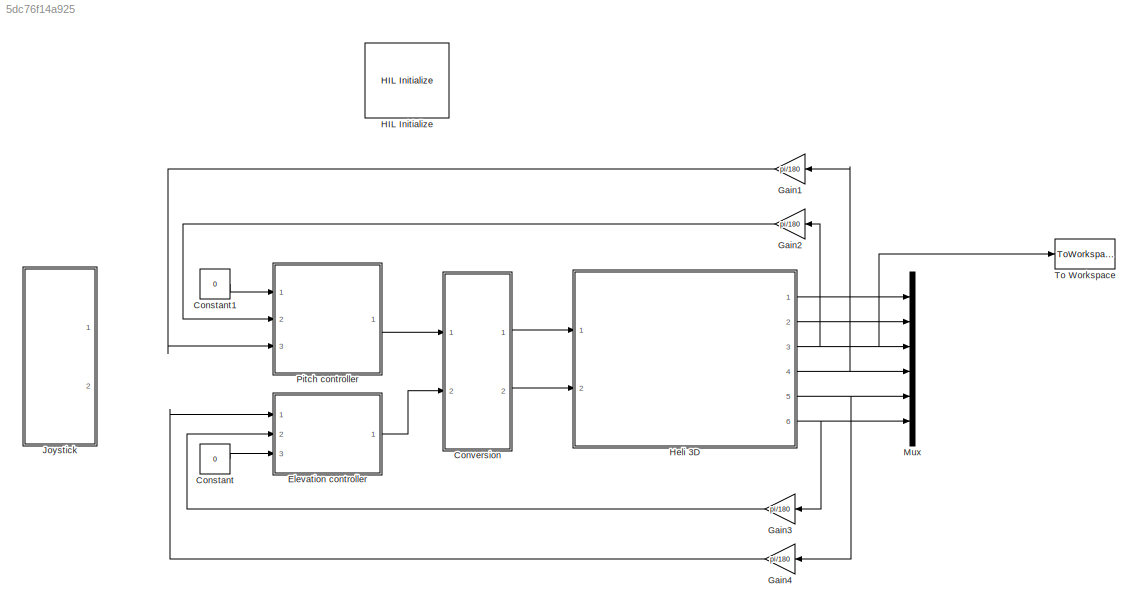
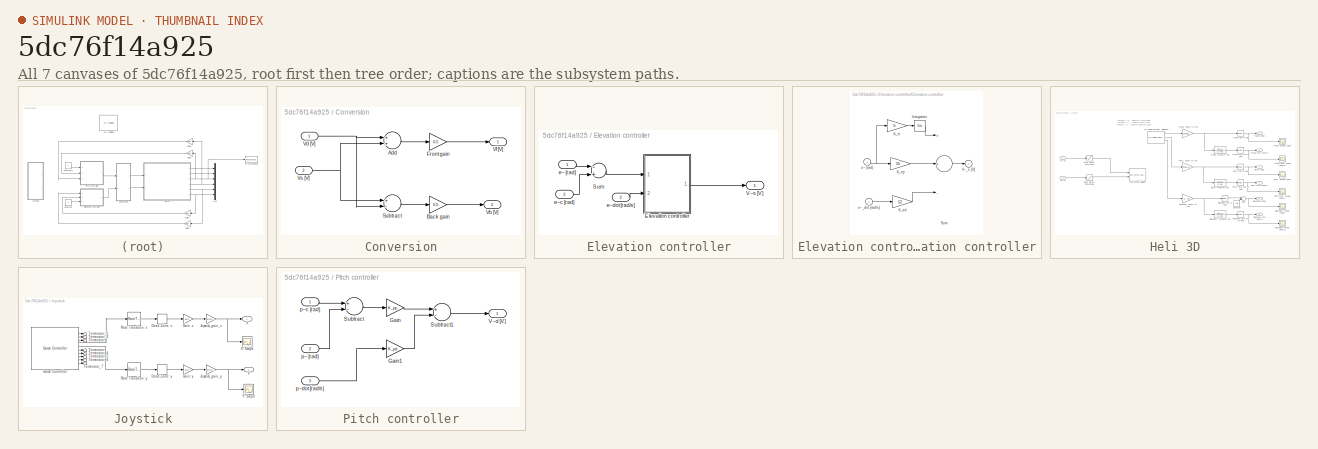
[diagram: thumbnail index - all 7 canvases of the model, root first then tree order]
MODEL slx_5dc76f14a925
KIND model
CONFIG PostLoadFcn = qc_set_target_type(getConfigSet(bdroot, 'QUARC Default Target Configuration'));
BLOCK [Constant] Constant
  Value = 0
BLOCK [Constant] Constant1
  Value = 0
BLOCK [SubSystem] Conversion
  Ports = [2, 2]
  RequestExecContextInheritance = off
BLOCK [Sum] Conversion/Add
  InputSameDT = off
  OutDataTypeStr = Inherit: Inherit via internal rule
  Ports = [2, 1]
  SaturateOnIntegerOverflow = off
BLOCK [Gain] Conversion/Back gain
  Gain = 0.5
  OutDataTypeStr = Inherit: Inherit via internal rule
  ParamDataTypeStr = Inherit: Inherit via internal rule
  SaturateOnIntegerOverflow = off
BLOCK [Gain] Conversion/Front gain
  Gain = 0.5
  OutDataTypeStr = Inherit: Inherit via internal rule
  ParamDataTypeStr = Inherit: Inherit via internal rule
  SaturateOnIntegerOverflow = off
BLOCK [Sum] Conversion/Subtract
  InputSameDT = off
  Inputs = +-
  OutDataTypeStr = Inherit: Inherit via internal rule
  Ports = [2, 1]
  SaturateOnIntegerOverflow = off
BLOCK [Outport] Conversion/Vb [V]
  IconDisplay = Port number
  Port = 2
BLOCK [Inport] Conversion/Vd [V]
  IconDisplay = Port number
BLOCK [Outport] Conversion/Vf [V]
  IconDisplay = Port number
BLOCK [Inport] Conversion/Vs [V]
  IconDisplay = Port number
  Port = 2
BLOCK [SubSystem] Elevation controller
  Ports = [3, 1]
  RequestExecContextInheritance = off
BLOCK [SubSystem] Elevation controller/Elevation controller
  Ports = [2, 1]
  RequestExecContextInheritance = off
BLOCK [Integrator] Elevation controller/Elevation controller/Integrator
  LimitOutput = on
  Ports = [1, 1]
BLOCK [Gain] Elevation controller/Elevation controller/K_ed
  Gain = 12
BLOCK [Gain] Elevation controller/Elevation controller/K_ei
  Gain = 5
BLOCK [Gain] Elevation controller/Elevation controller/K_ep
  Gain = 15
BLOCK [Sum] Elevation controller/Elevation controller/Sum
  Inputs = ++-
  Ports = [3, 1]
BLOCK [Outport] Elevation controller/Elevation controller/V~_s [V]
  IconDisplay = Port number
  InitialOutput = 0
BLOCK [Inport] Elevation controller/Elevation controller/e~ [rad]
  IconDisplay = Port number
BLOCK [Inport] Elevation controller/Elevation controller/e~_dot [rad//s]
  IconDisplay = Port number
  Port = 2
BLOCK [Sum] Elevation controller/Sum
  Inputs = -+
  Ports = [2, 1]
BLOCK [Outport] Elevation controller/V~s [V]
  IconDisplay = Port number
  InitialOutput = 0
BLOCK [Inport] Elevation controller/e~ [rad]
  IconDisplay = Port number
BLOCK [Inport] Elevation controller/e~c [rad]
  IconDisplay = Port number
  Port = 3
BLOCK [Inport] Elevation controller/e~dot [rad//s]
  IconDisplay = Port number
  Port = 2
BLOCK [Gain] Gain1
  Gain = pi/180
  OutDataTypeStr = Inherit: Inherit via internal rule
  ParamDataTypeStr = Inherit: Inherit via internal rule
  SaturateOnIntegerOverflow = off
BLOCK [Gain] Gain2
  Gain = pi/180
  OutDataTypeStr = Inherit: Inherit via internal rule
  ParamDataTypeStr = Inherit: Inherit via internal rule
  SaturateOnIntegerOverflow = off
BLOCK [Gain] Gain3
  Gain = pi/180
  OutDataTypeStr = Inherit: Inherit via internal rule
  ParamDataTypeStr = Inherit: Inherit via internal rule
  SaturateOnIntegerOverflow = off
BLOCK [Gain] Gain4
  Gain = pi/180
  OutDataTypeStr = Inherit: Inherit via internal rule
  ParamDataTypeStr = Inherit: Inherit via internal rule
  SaturateOnIntegerOverflow = off
BLOCK [Reference] HIL Initialize  REF=quarc_library/Data Acquisition/Generic/Configuration/HIL Initialize
  AttributesFormatString = %<object_name> (%<board_type>-%<board_number>)
  Ports = []
  Priority = -99
  SourceBlock = quarc_library/Data Acquisition/Generic/Configuration/HIL Initialize
  SourceType = HIL Initialize
  UserDataPersistent = on
  active = off
  analog_input_channels = [0:7]
  analog_input_maximums = 10
  analog_input_minimums = -10
  analog_output_channels = [0:7]
  analog_output_maximums = 10
  analog_output_minimums = -10
  board_number = 0
  board_options = update_rate=normal;decimation=1
  board_type = q8_usb
  clock_modes = []
  digital_input_channels = []
  digital_output_channels = []
  digital_output_configuration = []
  encoder_channels = [0:7]
  encoder_filter_frequency = []
  exclusive = off
  final_analog_outputs = [0]
  final_digital_outputs = [1]
  final_other_outputs = []
  final_pwm_outputs = [0]
  hardware_clocks = [0:2]
  initial_analog_outputs = [0]
  initial_clock_frequencies = []
  initial_digital_outputs = [1]
  initial_encoder_counts = [0]
  initial_other_outputs = []
  initial_pwm_outputs = [0]
  object_name = HIL-1
  other_output_channels = []
  pwm_alignment = [0]
  pwm_channels = [0:7]
  pwm_configuration = [0]
  pwm_frequency = 99.532799999999995e6/4095
  pwm_leading_deadband = [0]
  pwm_modes = 0
  pwm_polarity = [1]
  pwm_trailing_deadband = [0]
  quadrature = [4]
  set_analog_input_params_at_start = on
  set_analog_input_params_at_switch_in = off
  set_analog_output_params_at_start = on
  set_analog_output_params_at_switch_in = off
  set_analog_outputs_at_start = on
  set_analog_outputs_at_switch_in = off
  set_analog_outputs_at_switch_out = off
  set_analog_outputs_at_terminate = on
  set_analog_outputs_on_watchdog = off
  set_clock_frequencies_at_start = off
  set_clock_frequencies_at_switch_in = off
  set_clock_params_at_start = off
  set_clock_params_at_switch_in = off
  set_digital_output_params_at_start = off
  set_digital_output_params_at_switch_in = off
  set_digital_outputs_at_start = on
  set_digital_outputs_at_switch_in = off
  set_digital_outputs_at_switch_out = off
  set_digital_outputs_at_terminate = on
  set_digital_outputs_on_watchdog = off
  set_encoder_counts_at_start = on
  set_encoder_counts_at_switch_in = off
  set_encoder_params_at_start = on
  set_encoder_params_at_switch_in = off
  set_other_outputs_at_start = off
  set_other_outputs_at_switch_in = off
  set_other_outputs_at_switch_out = off
  set_other_outputs_at_terminate = off
  set_other_outputs_on_watchdog = off
  set_pwm_outputs_at_start = on
  set_pwm_outputs_at_switch_in = off
  set_pwm_outputs_at_switch_out = off
  set_pwm_outputs_at_terminate = on
  set_pwm_outputs_on_watchdog = off
  set_pwm_params_at_start = on
  set_pwm_params_at_switch_in = off
  watchdog_analog_outputs = 0
  watchdog_digital_outputs = [1]
  watchdog_other_outputs = []
  watchdog_pwm_outputs = [0]
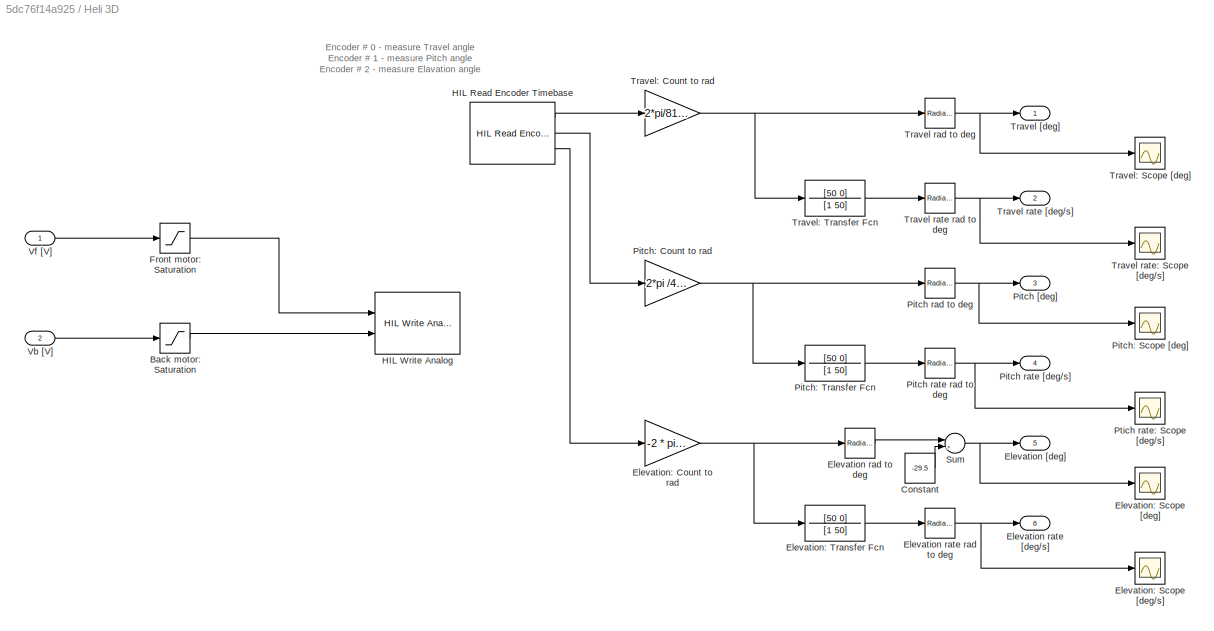
BLOCK [SubSystem] Heli 3D
  Ports = [2, 6]
  RequestExecContextInheritance = off
BLOCK [Saturate] Heli 3D/Back motor: Saturation
  InputPortMap = u0
  LowerLimit = -5
  Ports = [1, 1]
  UpperLimit = 5
BLOCK [Constant] Heli 3D/Constant
  Value = -29.5
BLOCK [Outport] Heli 3D/Elevation [deg]
  IconDisplay = Port number
  Port = 5
BLOCK [Reference] Heli 3D/Elevation rad to deg  REF=simulink_extras/Transformations/Radians
to Degrees
  Ports = [1, 1]
  SourceBlock = simulink_extras/Transformations/Radians\nto Degrees
  SourceType = RadiansToDegrees
BLOCK [Outport] Heli 3D/Elevation rate [deg//s]
  IconDisplay = Port number
  Port = 6
BLOCK [Reference] Heli 3D/Elevation rate rad to deg  REF=simulink_extras/Transformations/Radians
to Degrees
  Ports = [1, 1]
  SourceBlock = simulink_extras/Transformations/Radians\nto Degrees
  SourceType = RadiansToDegrees
BLOCK [Gain] Heli 3D/Elevation: Count to rad
  Gain = -2 * pi /4096
  OutDataTypeStr = Inherit: Inherit via internal rule
  ParamDataTypeStr = Inherit: Inherit via internal rule
  SaturateOnIntegerOverflow = off
BLOCK [Scope] Heli 3D/Elevation: Scope [deg//s]
  DataFormat = StructureWithTime
  Floating = off
  NumInputPorts = 1
  Ports = [1]
  SampleTime = 0
  SaveName = ScopeData13
  ShowLegends = off
  YMax = 15
  YMin = -15
BLOCK [Scope] Heli 3D/Elevation: Scope [deg]
  DataFormat = StructureWithTime
  Floating = off
  NumInputPorts = 1
  Ports = [1]
  SampleTime = 0
  SaveName = ScopeData12
  ShowLegends = off
  YMax = 7.5
  YMin = -30
BLOCK [TransferFcn] Heli 3D/Elevation: Transfer Fcn
  Denominator = [1 50]
  Numerator = [50 0]
BLOCK [Saturate] Heli 3D/Front motor: Saturation
  InputPortMap = u0
  LowerLimit = -5
  Ports = [1, 1]
  UpperLimit = 5
BLOCK [Reference] Heli 3D/HIL Read Encoder Timebase  REF=quarc_library/Data Acquisition/Generic/Timebases/HIL Read Encoder
Timebase
  AttributesFormatString = (%<object_name>)
  Ports = [0, 3]
  SourceBlock = quarc_library/Data Acquisition/Generic/Timebases/HIL Read Encoder\nTimebase
  SourceType = HIL Read Encoder Timebase
  UserDataPersistent = on
  active = on
  channels = [0:2]
  clock = 0
  data_type = double
  data_type_mode = Inherit via back propagation
  object_name = HIL-1
  samples_in_buffer = max(ceil(1/qc_get_step_size), 1)
  vector_output = off
BLOCK [Reference] Heli 3D/HIL Write Analog  REF=quarc_library/Data Acquisition/Generic/Immediate I//O/HIL Write Analog
  AttributesFormatString = (%<object_name>)
  Ports = [2]
  SourceBlock = quarc_library/Data Acquisition/Generic/Immediate I//O/HIL Write Analog
  SourceType = HIL Write Analog
  UserDataPersistent = on
  active = off
  channels = [0:1]
  object_name = HIL-1
  sample_time = -1
  vector_input = off
BLOCK [Outport] Heli 3D/Pitch [deg]
  IconDisplay = Port number
  Port = 3
BLOCK [Reference] Heli 3D/Pitch rad to deg  REF=simulink_extras/Transformations/Radians
to Degrees
  Ports = [1, 1]
  SourceBlock = simulink_extras/Transformations/Radians\nto Degrees
  SourceType = RadiansToDegrees
BLOCK [Outport] Heli 3D/Pitch rate [deg//s]
  IconDisplay = Port number
  Port = 4
BLOCK [Reference] Heli 3D/Pitch rate rad to deg  REF=simulink_extras/Transformations/Radians
to Degrees
  Ports = [1, 1]
  SourceBlock = simulink_extras/Transformations/Radians\nto Degrees
  SourceType = RadiansToDegrees
BLOCK [Gain] Heli 3D/Pitch: Count to rad
  Gain = 2*pi /4096
  OutDataTypeStr = Inherit: Inherit via internal rule
  ParamDataTypeStr = Inherit: Inherit via internal rule
  SaturateOnIntegerOverflow = off
BLOCK [Scope] Heli 3D/Pitch: Scope [deg]
  DataFormat = StructureWithTime
  Floating = off
  LimitDataPoints = off
  NumInputPorts = 1
  Ports = [1]
  SampleTime = 0
  SaveName = pitchdeg
  ShowLegends = off
  YMax = 20
  YMin = -10
  ZoomMode = yonly
BLOCK [TransferFcn] Heli 3D/Pitch: Transfer Fcn
  Denominator = [1 50]
  Numerator = [50 0]
BLOCK [Scope] Heli 3D/Ptich rate: Scope [deg//s]
  DataFormat = StructureWithTime
  Floating = off
  NumInputPorts = 1
  Ports = [1]
  SampleTime = 0
  SaveName = ScopeData11
  ShowLegends = off
  YMax = 15
  YMin = -15
BLOCK [Sum] Heli 3D/Sum
  IconShape = round
  InputSameDT = off
  Inputs = |++
  OutDataTypeStr = Inherit: Inherit via internal rule
  Ports = [2, 1]
  SaturateOnIntegerOverflow = off
BLOCK [Outport] Heli 3D/Travel [deg]
  IconDisplay = Port number
BLOCK [Reference] Heli 3D/Travel rad to deg  REF=simulink_extras/Transformations/Radians
to Degrees
  Ports = [1, 1]
  SourceBlock = simulink_extras/Transformations/Radians\nto Degrees
  SourceType = RadiansToDegrees
BLOCK [Reference] Heli 3D/Travel rate  rad to deg  REF=simulink_extras/Transformations/Radians
to Degrees
  Ports = [1, 1]
  SourceBlock = simulink_extras/Transformations/Radians\nto Degrees
  SourceType = RadiansToDegrees
BLOCK [Outport] Heli 3D/Travel rate [deg//s]
  IconDisplay = Port number
  Port = 2
BLOCK [Scope] Heli 3D/Travel rate: Scope [deg//s]
  DataFormat = StructureWithTime
  Floating = off
  NumInputPorts = 1
  Ports = [1]
  SampleTime = 0
  SaveName = ScopeData9
  ShowLegends = off
  YMax = 15
  YMin = -15
BLOCK [Gain] Heli 3D/Travel: Count to rad
  Gain = 2*pi/8192
  OutDataTypeStr = Inherit: Inherit via internal rule
  ParamDataTypeStr = Inherit: Inherit via internal rule
  SaturateOnIntegerOverflow = off
BLOCK [Scope] Heli 3D/Travel: Scope [deg]
  DataFormat = StructureWithTime
  Floating = off
  NumInputPorts = 1
  Ports = [1]
  SampleTime = 0
  SaveName = ScopeData8
  ShowLegends = off
  YMax = 15
  YMin = -15
BLOCK [TransferFcn] Heli 3D/Travel: Transfer Fcn
  Denominator = [1 50]
  Numerator = [50 0]
BLOCK [Inport] Heli 3D/Vb [V]
  IconDisplay = Port number
  Port = 2
BLOCK [Inport] Heli 3D/Vf [V]
  IconDisplay = Port number
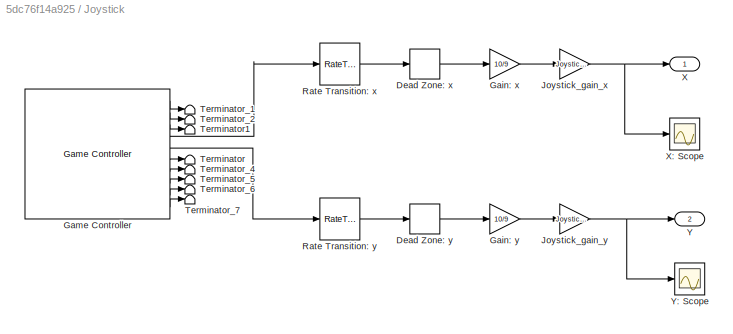
BLOCK [SubSystem] Joystick
  Ports = [0, 2]
  RequestExecContextInheritance = off
BLOCK [DeadZone] Joystick/Dead Zone: x
  LowerValue = -0.1
  UpperValue = 0.1
BLOCK [DeadZone] Joystick/Dead Zone: y
  LowerValue = -0.1
  UpperValue = 0.1
BLOCK [Gain] Joystick/Gain: x
  Gain = 10/9
  OutDataTypeStr = Inherit: Inherit via internal rule
  ParamDataTypeStr = Inherit: Inherit via internal rule
  SaturateOnIntegerOverflow = off
BLOCK [Gain] Joystick/Gain: y
  Gain = 10/9
  OutDataTypeStr = Inherit: Inherit via internal rule
  ParamDataTypeStr = Inherit: Inherit via internal rule
  SaturateOnIntegerOverflow = off
BLOCK [Reference] Joystick/Game Controller  REF=quarc_library/Devices/Peripherals/Target/Game Controller
  Ports = [0, 10]
  SourceBlock = quarc_library/Devices/Peripherals/Target/Game Controller
  SourceType = Game Controller
  auto_center = off
  buffer_size = 12
  controller = 1
  deadzone = []
  enabled = on
  sample_time = max(qc_get_step_size, 0.01)
  saturation = []
BLOCK [Gain] Joystick/Joystick_gain_x
  Gain = Joystick_gain_x
  OutDataTypeStr = Inherit: Inherit via internal rule
  ParamDataTypeStr = Inherit: Inherit via internal rule
  SaturateOnIntegerOverflow = off
BLOCK [Gain] Joystick/Joystick_gain_y
  Gain = Joystick_gain_y
  OutDataTypeStr = Inherit: Inherit via internal rule
  ParamDataTypeStr = Inherit: Inherit via internal rule
  SaturateOnIntegerOverflow = off
BLOCK [RateTransition] Joystick/Rate Transition: x
BLOCK [RateTransition] Joystick/Rate Transition: y
BLOCK [Terminator] Joystick/Terminator
BLOCK [Terminator] Joystick/Terminator1
BLOCK [Terminator] Joystick/Terminator_1
BLOCK [Terminator] Joystick/Terminator_2
BLOCK [Terminator] Joystick/Terminator_4
BLOCK [Terminator] Joystick/Terminator_5
BLOCK [Terminator] Joystick/Terminator_6
BLOCK [Terminator] Joystick/Terminator_7
BLOCK [Outport] Joystick/X
  IconDisplay = Port number
BLOCK [Scope] Joystick/X: Scope
  DataFormat = StructureWithTime
  Floating = off
  NumInputPorts = 1
  Ports = [1]
  SampleTime = 0
  SaveName = ScopeData7
  ShowLegends = off
  YMax = 1
  YMin = -1
  ZoomMode = yonly
BLOCK [Outport] Joystick/Y
  IconDisplay = Port number
  Port = 2
BLOCK [Scope] Joystick/Y: Scope
  DataFormat = StructureWithTime
  Floating = off
  NumInputPorts = 1
  Ports = [1]
  SampleTime = 0
  SaveName = ScopeData5
  ShowLegends = off
  YMax = 10
  YMin = -10
BLOCK [Mux] Mux
  DisplayOption = bar
  Inputs = 6
  Ports = [6, 1]
BLOCK [SubSystem] Pitch controller
  Ports = [3, 1]
  RequestExecContextInheritance = off
BLOCK [Gain] Pitch controller/Gain
  Gain = K_pp
  OutDataTypeStr = Inherit: Inherit via internal rule
  ParamDataTypeStr = Inherit: Inherit via internal rule
  SaturateOnIntegerOverflow = off
BLOCK [Gain] Pitch controller/Gain1
  Gain = K_pd
  OutDataTypeStr = Inherit: Inherit via internal rule
  ParamDataTypeStr = Inherit: Inherit via internal rule
  SaturateOnIntegerOverflow = off
BLOCK [Sum] Pitch controller/Subtract
  InputSameDT = off
  Inputs = +-
  OutDataTypeStr = Inherit: Inherit via internal rule
  Ports = [2, 1]
  SaturateOnIntegerOverflow = off
BLOCK [Sum] Pitch controller/Subtract1
  InputSameDT = off
  Inputs = +-
  OutDataTypeStr = Inherit: Inherit via internal rule
  Ports = [2, 1]
  SaturateOnIntegerOverflow = off
BLOCK [Outport] Pitch controller/V~d [V]
  IconDisplay = Port number
  InitialOutput = 0
BLOCK [Inport] Pitch controller/p~ [rad]
  IconDisplay = Port number
  Port = 2
BLOCK [Inport] Pitch controller/p~c [rad]
  IconDisplay = Port number
BLOCK [Inport] Pitch controller/p~dot [rad//s]
  IconDisplay = Port number
  Port = 3
BLOCK [ToWorkspace] To Workspace
  FixptAsFi = on
  MaxDataPoints = inf
  Ports = [1]
  SampleTime = -1
  Save2DSignal = 3-D array (concatenate along third dimension)
  SaveFormat = Structure With Time
  VariableName = simout
ANNOTATION Heli 3D: Encoder # 0 - measure Travel angle Encoder # 1 - measure Pitch angle Encoder # 2 - measure Elavation angle
LINE Constant1:1 -> Pitch controller:1
LINE Constant:1 -> Elevation controller:3
LINE Conversion/Add:1 -> Conversion/Front gain:1
LINE Conversion/Back gain:1 -> Conversion/Vb [V]:1
LINE Conversion/Front gain:1 -> Conversion/Vf [V]:1
LINE Conversion/Subtract:1 -> Conversion/Back gain:1
NET Conversion/Vd [V]:1 -> Conversion/Add:1, Conversion/Subtract:2
NET Conversion/Vs [V]:1 -> Conversion/Add:2, Conversion/Subtract:1
LINE Conversion:1 -> Heli 3D:1
LINE Conversion:2 -> Heli 3D:2
LINE Elevation controller/Elevation controller/Integrator:1 -> Elevation controller/Elevation controller/Sum:1
LINE Elevation controller/Elevation controller/K_ed:1 -> Elevation controller/Elevation controller/Sum:3
LINE Elevation controller/Elevation controller/K_ei:1 -> Elevation controller/Elevation controller/Integrator:1
LINE Elevation controller/Elevation controller/K_ep:1 -> Elevation controller/Elevation controller/Sum:2
LINE Elevation controller/Elevation controller/Sum:1 -> Elevation controller/Elevation controller/V~_s [V]:1
NET Elevation controller/Elevation controller/e~ [rad]:1 -> Elevation controller/Elevation controller/K_ei:1, Elevation controller/Elevation controller/K_ep:1
LINE Elevation controller/Elevation controller/e~_dot [rad//s]:1 -> Elevation controller/Elevation controller/K_ed:1
LINE Elevation controller/Elevation controller:1 -> Elevation controller/V~s [V]:1
LINE Elevation controller/Sum:1 -> Elevation controller/Elevation controller:1
LINE Elevation controller/e~ [rad]:1 -> Elevation controller/Sum:1
LINE Elevation controller/e~c [rad]:1 -> Elevation controller/Sum:2
LINE Elevation controller/e~dot [rad//s]:1 -> Elevation controller/Elevation controller:2
LINE Elevation controller:1 -> Conversion:2
LINE Gain1:1 -> Pitch controller:3
LINE Gain2:1 -> Pitch controller:2
LINE Gain3:1 -> Elevation controller:2
LINE Gain4:1 -> Elevation controller:1
LINE Heli 3D/Back motor: Saturation:1 -> Heli 3D/HIL Write Analog:2
LINE Heli 3D/Constant:1 -> Heli 3D/Sum:2
LINE Heli 3D/Elevation rad to deg:1 -> Heli 3D/Sum:1
NET Heli 3D/Elevation rate rad to deg:1 -> Heli 3D/Elevation rate [deg//s]:1, Heli 3D/Elevation: Scope [deg//s]:1
NET Heli 3D/Elevation: Count to rad:1 -> Heli 3D/Elevation rad to deg:1, Heli 3D/Elevation: Transfer Fcn:1
LINE Heli 3D/Elevation: Transfer Fcn:1 -> Heli 3D/Elevation rate rad to deg:1
LINE Heli 3D/Front motor: Saturation:1 -> Heli 3D/HIL Write Analog:1
LINE Heli 3D/HIL Read Encoder Timebase:1 -> Heli 3D/Travel: Count to rad:1
LINE Heli 3D/HIL Read Encoder Timebase:2 -> Heli 3D/Pitch: Count to rad:1
LINE Heli 3D/HIL Read Encoder Timebase:3 -> Heli 3D/Elevation: Count to rad:1
NET Heli 3D/Pitch rad to deg:1 -> Heli 3D/Pitch [deg]:1, Heli 3D/Pitch: Scope [deg]:1
NET Heli 3D/Pitch rate rad to deg:1 -> Heli 3D/Pitch rate [deg//s]:1, Heli 3D/Ptich rate: Scope [deg//s]:1
NET Heli 3D/Pitch: Count to rad:1 -> Heli 3D/Pitch rad to deg:1, Heli 3D/Pitch: Transfer Fcn:1
LINE Heli 3D/Pitch: Transfer Fcn:1 -> Heli 3D/Pitch rate rad to deg:1
NET Heli 3D/Sum:1 -> Heli 3D/Elevation [deg]:1, Heli 3D/Elevation: Scope [deg]:1
NET Heli 3D/Travel rad to deg:1 -> Heli 3D/Travel [deg]:1, Heli 3D/Travel: Scope [deg]:1
NET Heli 3D/Travel rate  rad to deg:1 -> Heli 3D/Travel rate [deg//s]:1, Heli 3D/Travel rate: Scope [deg//s]:1
NET Heli 3D/Travel: Count to rad:1 -> Heli 3D/Travel rad to deg:1, Heli 3D/Travel: Transfer Fcn:1
LINE Heli 3D/Travel: Transfer Fcn:1 -> Heli 3D/Travel rate  rad to deg:1
LINE Heli 3D/Vb [V]:1 -> Heli 3D/Back motor: Saturation:1
LINE Heli 3D/Vf [V]:1 -> Heli 3D/Front motor: Saturation:1
LINE Heli 3D:1 -> Mux:1
LINE Heli 3D:2 -> Mux:2
NET Heli 3D:3 -> Gain2:1, Mux:3, To Workspace:1
NET Heli 3D:4 -> Gain1:1, Mux:4
NET Heli 3D:5 -> Gain4:1, Mux:5
NET Heli 3D:6 -> Gain3:1, Mux:6
LINE Joystick/Dead Zone: x:1 -> Joystick/Gain: x:1
LINE Joystick/Dead Zone: y:1 -> Joystick/Gain: y:1
LINE Joystick/Gain: x:1 -> Joystick/Joystick_gain_x:1
LINE Joystick/Gain: y:1 -> Joystick/Joystick_gain_y:1
LINE Joystick/Game Controller:1 -> Joystick/Terminator_1:1
LINE Joystick/Game Controller:10 -> Joystick/Terminator_7:1
LINE Joystick/Game Controller:2 -> Joystick/Terminator_2:1
LINE Joystick/Game Controller:3 -> Joystick/Terminator1:1
LINE Joystick/Game Controller:4 -> Joystick/Rate Transition: x:1
LINE Joystick/Game Controller:5 -> Joystick/Rate Transition: y:1
LINE Joystick/Game Controller:6 -> Joystick/Terminator:1
LINE Joystick/Game Controller:7 -> Joystick/Terminator_4:1
LINE Joystick/Game Controller:8 -> Joystick/Terminator_5:1
LINE Joystick/Game Controller:9 -> Joystick/Terminator_6:1
NET Joystick/Joystick_gain_x:1 -> Joystick/X: Scope:1, Joystick/X:1
NET Joystick/Joystick_gain_y:1 -> Joystick/Y: Scope:1, Joystick/Y:1
LINE Joystick/Rate Transition: x:1 -> Joystick/Dead Zone: x:1
LINE Joystick/Rate Transition: y:1 -> Joystick/Dead Zone: y:1
LINE Pitch controller/Gain1:1 -> Pitch controller/Subtract1:2
LINE Pitch controller/Gain:1 -> Pitch controller/Subtract1:1
LINE Pitch controller/Subtract1:1 -> Pitch controller/V~d [V]:1
LINE Pitch controller/Subtract:1 -> Pitch controller/Gain:1
LINE Pitch controller/p~ [rad]:1 -> Pitch controller/Subtract:2
LINE Pitch controller/p~c [rad]:1 -> Pitch controller/Subtract:1
LINE Pitch controller/p~dot [rad//s]:1 -> Pitch controller/Gain1:1
LINE Pitch controller:1 -> Conversion:1
note: NET lines group one-source signal fan-out (src -> all destinations, sorted); 1:1 wires keep LINE
